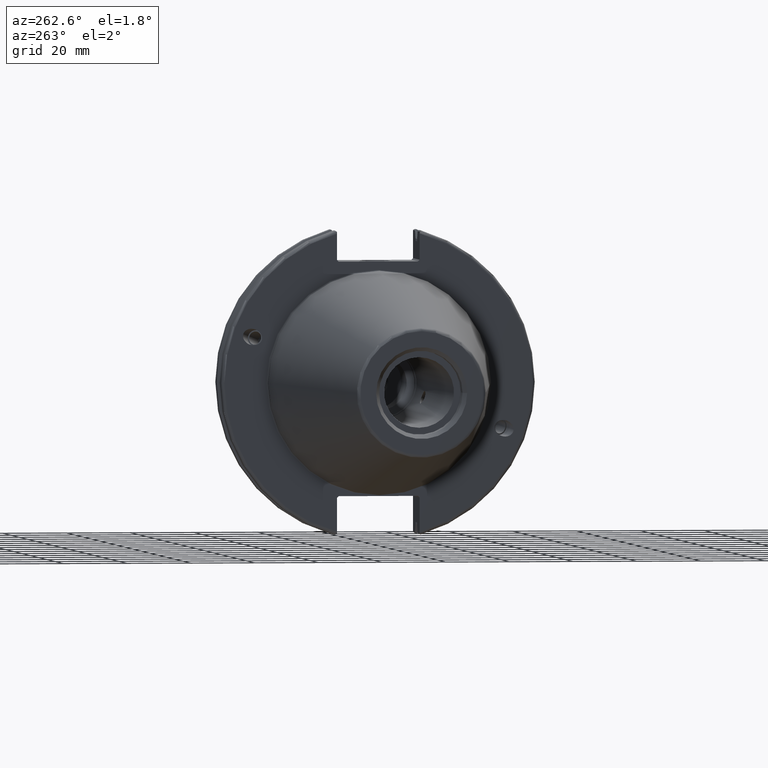
[diagram: clean part render]
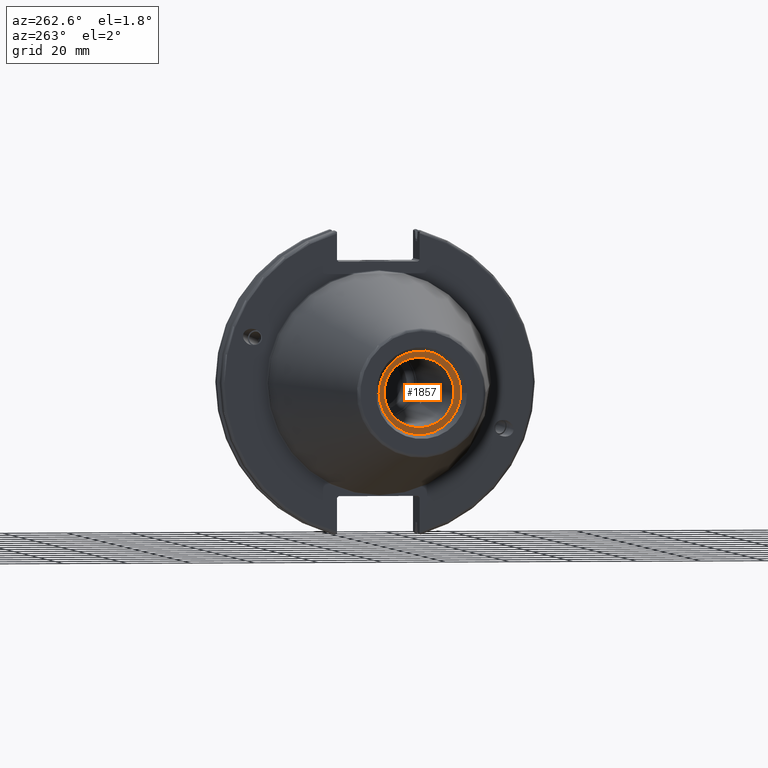
[diagram: same view with one face highlighted and labeled with its STEP entity id]
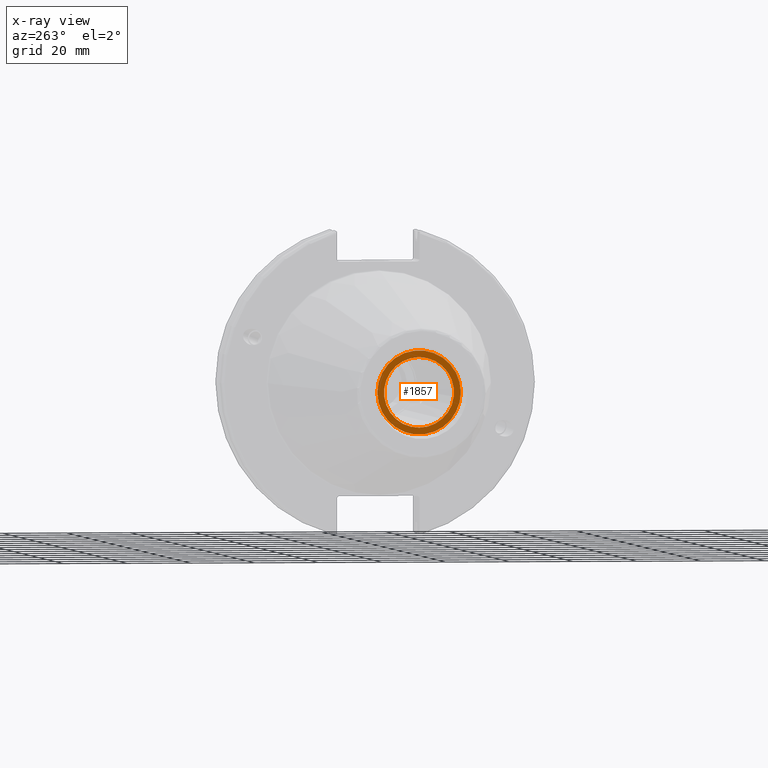
[diagram: x-ray of the same camera — body ghosted, the highlighted face saturated]
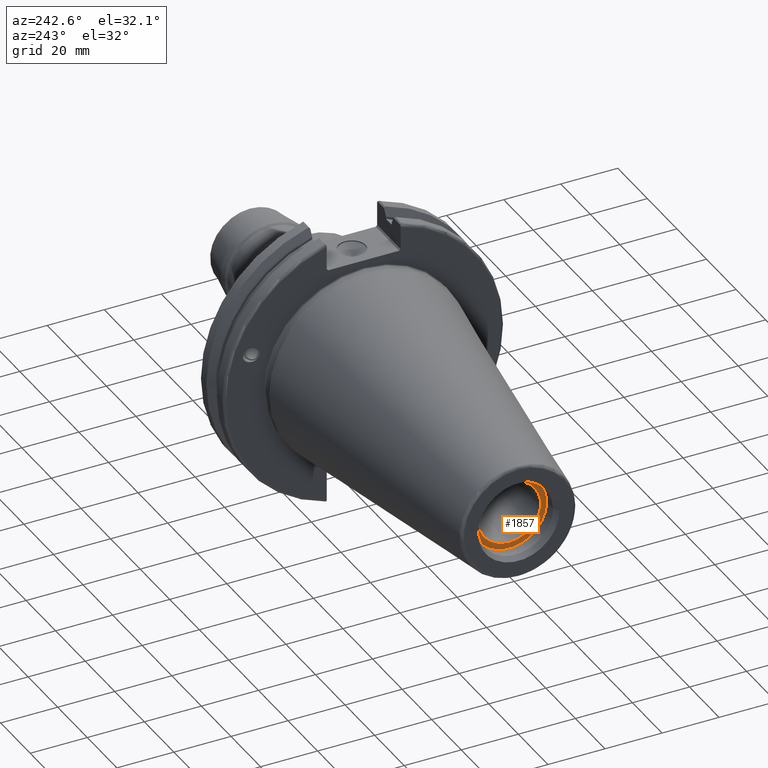
[diagram: same view with one face highlighted and labeled with its STEP entity id]
A machine part, auxiliary view. The second image highlights one B-rep face of the part: STEP entity #1857.
The next image is the same camera in x-ray: the body ghosted, the highlighted face saturated — about 0% of this face is hidden behind the body in this view.
A second angle (auxiliary view) of the same face is appended — the face is thin or edge-on in the first view.
In plain terms, the highlighted planar face has unit normal (-1, 0, 0).
Its self-contained STEP definition (entity closure, byte-faithful):
#127=FACE_BOUND('',#394,.T.);
#162=PLANE('',#2127);
#268=FACE_OUTER_BOUND('',#393,.T.);
#393=EDGE_LOOP('',(#1716));
#394=EDGE_LOOP('',(#1717));
#665=CIRCLE('',#1992,10.9855);
#710=CIRCLE('',#2123,13.1);
#785=VERTEX_POINT('',#2934);
#891=VERTEX_POINT('',#3489);
#996=EDGE_CURVE('',#785,#785,#665,.T.);
#1163=EDGE_CURVE('',#891,#891,#710,.T.);
#1716=ORIENTED_EDGE('',*,*,#1163,.F.);
#1717=ORIENTED_EDGE('',*,*,#996,.T.);
#1857=ADVANCED_FACE('',(#268,#127),#162,.T.);
#1992=AXIS2_PLACEMENT_3D('',#2935,#2379,#2380);
#2123=AXIS2_PLACEMENT_3D('',#3490,#2709,#2710);
#2127=AXIS2_PLACEMENT_3D('',#3498,#2720,#2721);
#2379=DIRECTION('center_axis',(1.,0.,0.));
#2380=DIRECTION('ref_axis',(0.,0.,1.));
#2709=DIRECTION('center_axis',(1.,0.,0.));
#2710=DIRECTION('ref_axis',(0.,0.,-1.));
#2720=DIRECTION('center_axis',(-1.,0.,0.));
#2721=DIRECTION('ref_axis',(0.,0.,1.));
#2934=CARTESIAN_POINT('',(-95.25,1.34533574120333E-15,-10.9855));
#2935=CARTESIAN_POINT('Origin',(-95.25,0.,0.));
#3489=CARTESIAN_POINT('',(-95.25,-13.1,-1.60428730688303E-15));
#3490=CARTESIAN_POINT('Origin',(-95.25,0.,0.));
#3498=CARTESIAN_POINT('Origin',(-95.25,13.1,0.));